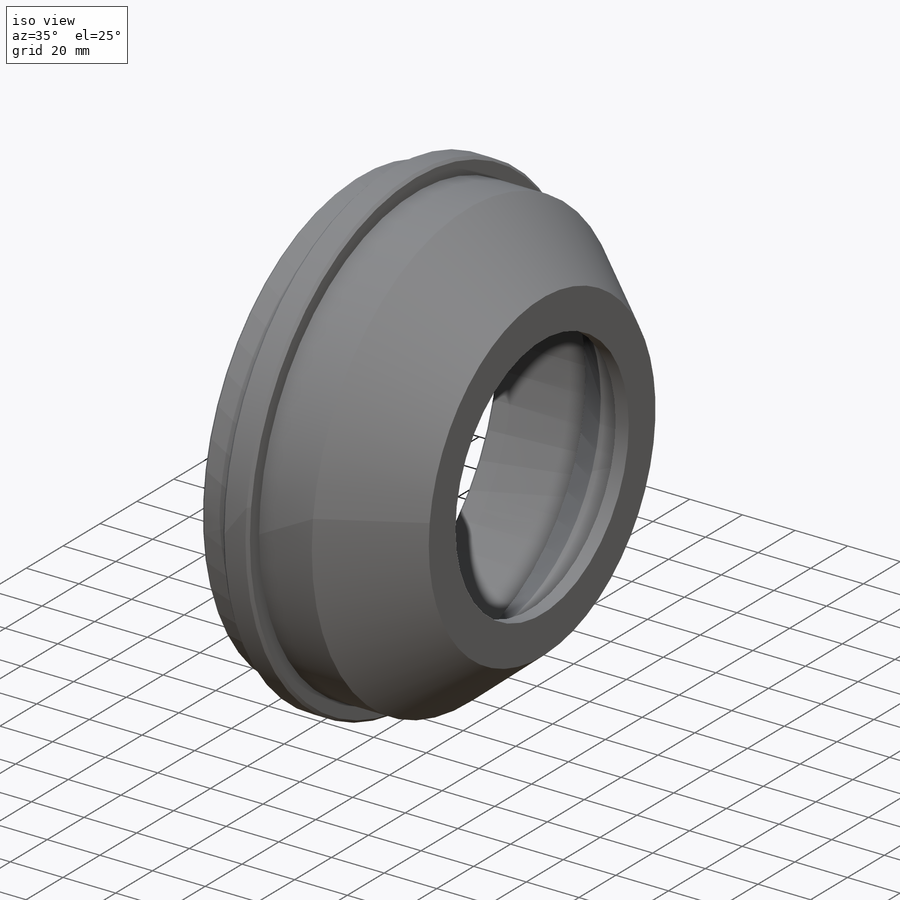
[diagram: iso view]
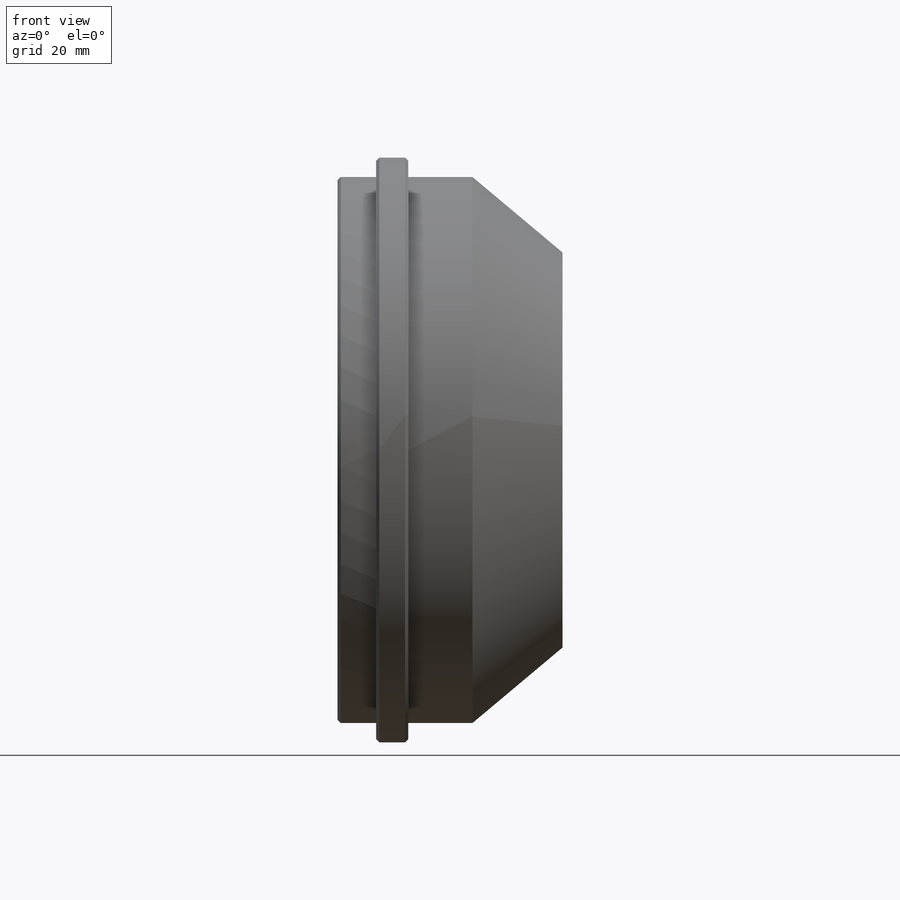
[diagram: front view]
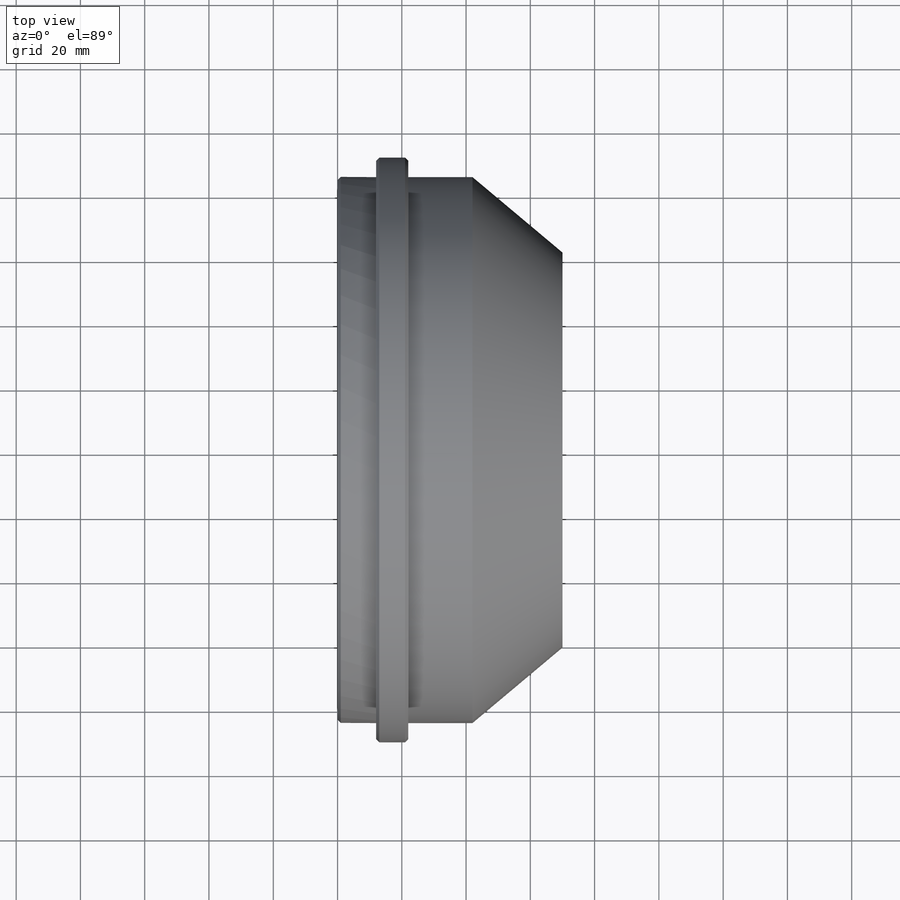
[diagram: top view]
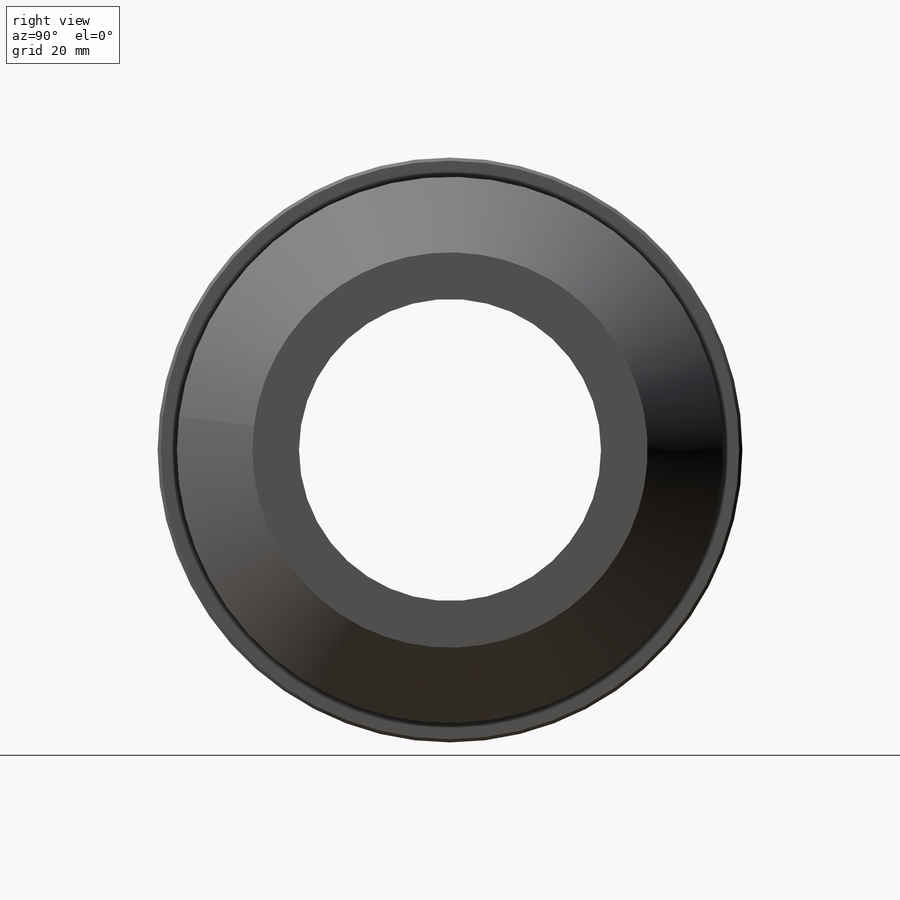
[diagram: right view]
SOLIDWORKS PART (.sldprt)
format: sldprt  version: not decoded by parser v0  size: 227,328 bytes
history: native  units: mm
features: plane x3, fillet x2, material x1, sketch x1, revolve x1, chamfer x1 (+8 scaffold rows collapsed)
feature tree (17):
  scaffold x8  (default folders/planes/origin — collapsed)
  material  "16NiCr4"
  plane  "Płaszczyzna przednia"
  plane  "Płaszczyzna górna"
  plane  "Płaszczyzna prawa"
  sketch  "Szkic1"  dims[c1.D1=94.0mm c1.D2=115.0mm c1.D3=150.0mm c1.D4=38.0mm c1.D5=12.0mm c1.D6=10.0mm c1.D7=6.0mm c1.D8=170.0mm c1.D9=5.0mm c1.D10=13.0mm c1.D11=14.0mm c1.D12=~8.713627mm c2.D12=40.0deg c2.D13=70.0mm c2.D11=70.0mm c3.D13=~25.616761mm c4.D13=40.0deg c4.D14=20.0mm]
  revolve  "Obrót1"  Angle=360deg
  fillet  "Zaokrąglenie1"  Radius=1mm
  fillet  "Zaokrąglenie2"  Radius=1mm
  chamfer  "Sfazowanie1"  Distance=1mm Angle=45deg
decode coverage: 5 of 5 modeling features carry decoded parameters
note: ~ marks probable driven/reference dimensions
note: suppression state not decoded; provenance and decode notes live in map.json
